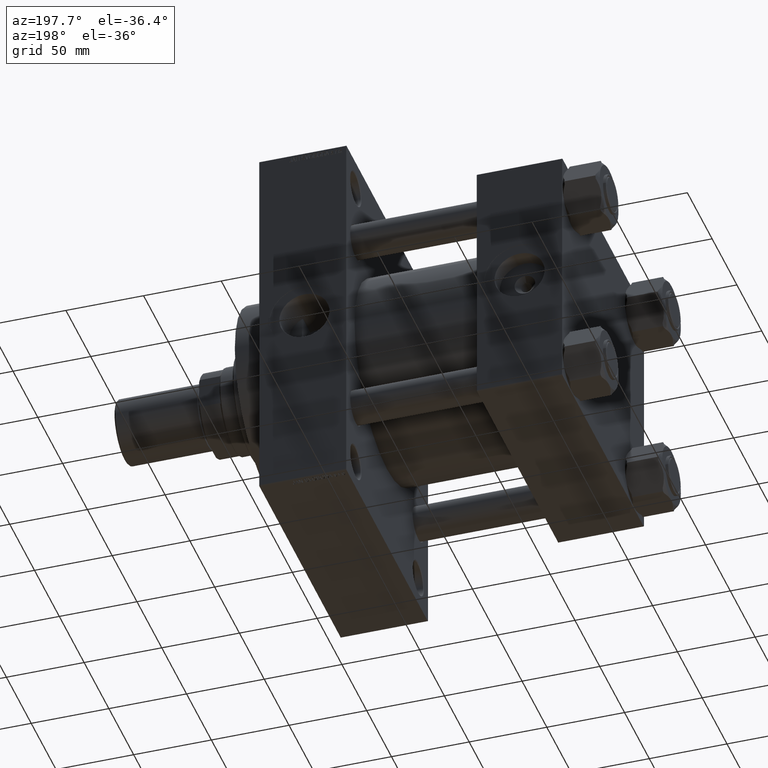
[diagram: clean part render]
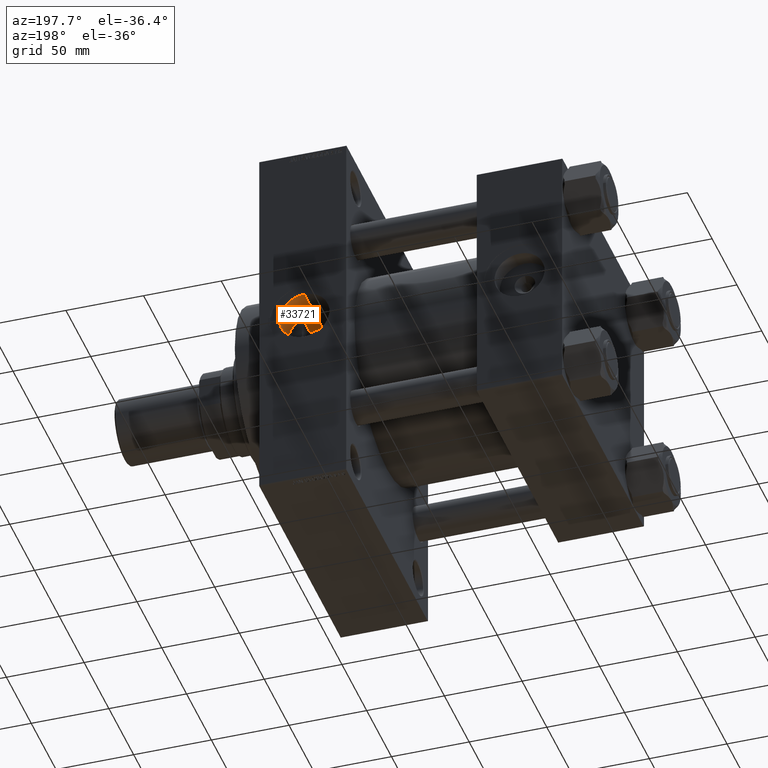
[diagram: same view with one face highlighted and labeled with its STEP entity id]
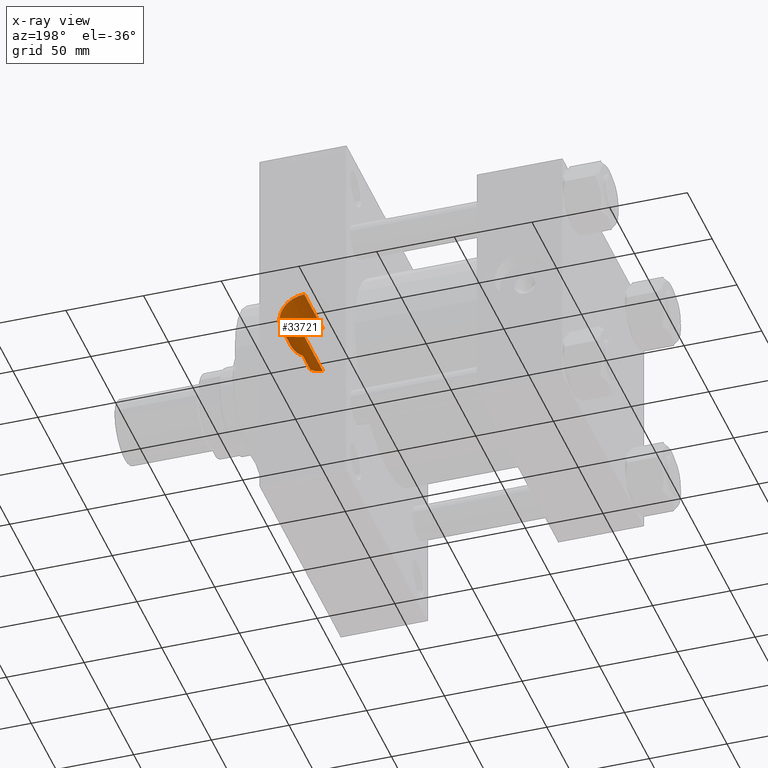
[diagram: x-ray of the same camera — body ghosted, the highlighted face saturated]
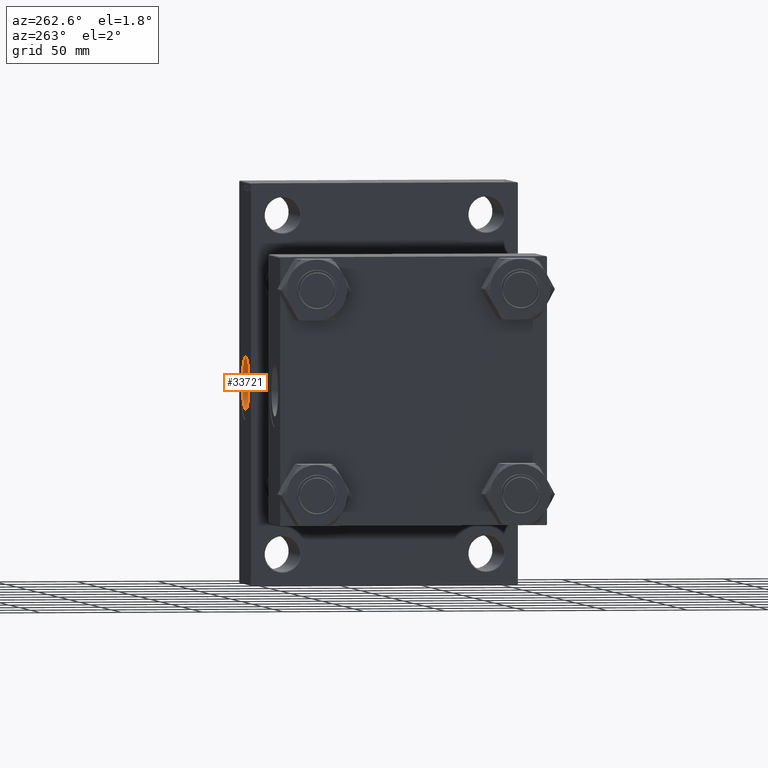
[diagram: same view with one face highlighted and labeled with its STEP entity id]
A machine part, auxiliary view. The second image highlights one B-rep face of the part: STEP entity #33721.
The next image is the same camera in x-ray: the body ghosted, the highlighted face saturated — about 0% of this face is hidden behind the body in this view.
A second angle (auxiliary view) of the same face is appended — the face is thin or edge-on in the first view.
In plain terms, the highlighted cylindrical surface (edge-blend (fillet) strip) has radius 16.12 mm, axis along (0, 1, 0).
Its self-contained STEP definition (entity closure, byte-faithful):
#37 = CARTESIAN_POINT ( 'NONE',  ( 173.1494744944648971, 45.77031564350476600, 14.46349258032446095 ) ) ;
#1028 = CARTESIAN_POINT ( 'NONE',  ( 173.7400000000000091, 45.86995966861102403, -14.14025459459621636 ) ) ;
#1095 = VERTEX_POINT ( 'NONE', #9516 ) ;
#1519 = CARTESIAN_POINT ( 'NONE',  ( 181.3378692003156232, 62.55353753374316739, 4.973331691625751283 ) ) ;
#2681 = B_SPLINE_CURVE_WITH_KNOTS ( 'NONE', 3,
 ( #19817, #15684, #38549, #8620, #12039, #20048, #31006, #46075, #30777, #34887, #45846, #1519, #27588, #19582, #16401, #12266, #31481, #12500, #12734, #27347, #42424, #26894, #9088, #38083, #41721, #8391, #5422, #23950, #20288, #38786, #35126, #16636, #46318, #12965 ),
 .UNSPECIFIED., .F., .F.,
 ( 4, 2, 2, 2, 2, 2, 2, 2, 2, 2, 2, 2, 2, 2, 2, 2, 4 ),
 ( 0.000000000000000000, 0.004310786156037396157, 0.006466179234056097271, 0.008621572312074797517, 0.01077696539009349863, 0.01185466192910285266, 0.01293235846811220495, 0.01508775154613088351, 0.01616544808514022713, 0.01724314462414957422, 0.02155393078018695563, 0.02370932385820564287, 0.02586471693622432663, 0.02802011001424301387, 0.03017550309226170457, 0.03233089617028038487, 0.03448628924829907211 ),
 .UNSPECIFIED. ) ;
#3685 = CARTESIAN_POINT ( 'NONE',  ( 171.2899849201476172, 45.51642107398105708, 15.24214357041101842 ) ) ;
#4374 = LINE ( 'NONE', #26556, #21952 ) ;
#4875 = ORIENTED_EDGE ( 'NONE', *, *, #31900, .T. ) ;
#5338 = CIRCLE ( 'NONE', #10821, 16.11999999999998678 ) ;
#5422 = CARTESIAN_POINT ( 'NONE',  ( 179.0878676966942464, 62.03878507609340431, -9.438007975454681286 ) ) ;
#6553 = VECTOR ( 'NONE', #47129, 1000.000000000000000 ) ;
#6772 = CARTESIAN_POINT ( 'NONE',  ( 168.6857543329126941, 45.28696950697766255, -15.90906751370484074 ) ) ;
#7503 = B_SPLINE_CURVE_WITH_KNOTS ( 'NONE', 3,
 ( #39017, #35358, #46554, #28546, #3685, #14416, #37, #29280 ),
 .UNSPECIFIED., .F., .F.,
 ( 4, 2, 2, 4 ),
 ( 0.05886594967679183166, 0.06289198165460405110, 0.06490499764351020939, 0.06691801363241635381 ),
 .UNSPECIFIED. ) ;
#8391 = CARTESIAN_POINT ( 'NONE',  ( 179.4999446742530154, 62.12752439615220368, -8.838607020167566830 ) ) ;
#8620 = CARTESIAN_POINT ( 'NONE',  ( 177.7040777867184147, 61.76112709188344496, 11.10770905158154065 ) ) ;
#9088 = CARTESIAN_POINT ( 'NONE',  ( 181.1156720542798837, 62.49893997579496130, -5.646621973076297429 ) ) ;
#9516 = CARTESIAN_POINT ( 'NONE',  ( 173.7400000000000091, 61.13604256083313260, 14.14025459459622525 ) ) ;
#9721 = DIRECTION ( 'NONE',  ( -0.000000000000000000, 1.000000000000000000, -0.000000000000000000 ) ) ;
#9816 = CARTESIAN_POINT ( 'NONE',  ( 166.0000000000000000, 82.29999999999998295, 16.11999999999998678 ) ) ;
#10207 = LINE ( 'NONE', #13849, #22874 ) ;
#10271 = DIRECTION ( 'NONE',  ( 0.000000000000000000, 0.000000000000000000, 1.000000000000000000 ) ) ;
#10704 = ORIENTED_EDGE ( 'NONE', *, *, #27239, .F. ) ;
#10821 = AXIS2_PLACEMENT_3D ( 'NONE', #43094, #24614, #12682 ) ;
#11164 = CARTESIAN_POINT ( 'NONE',  ( 167.3438729436467156, 45.22722990940117427, -16.07811279359962597 ) ) ;
#11576 = EDGE_CURVE ( 'NONE', #1095, #47817, #2681, .T. ) ;
#12039 = CARTESIAN_POINT ( 'NONE',  ( 178.1922647847151779, 61.85603912276899763, 10.56962814951440066 ) ) ;
#12151 = ORIENTED_EDGE ( 'NONE', *, *, #13703, .F. ) ;
#12266 = CARTESIAN_POINT ( 'NONE',  ( 182.0210206864248903, 62.72462827178716793, 1.819628234284409452 ) ) ;
#12311 = ORIENTED_EDGE ( 'NONE', *, *, #11576, .F. ) ;
#12326 = VERTEX_POINT ( 'NONE', #9816 ) ;
#12425 = VECTOR ( 'NONE', #33679, 1000.000000000000000 ) ;
#12500 = CARTESIAN_POINT ( 'NONE',  ( 182.1073514951995094, 62.74674732847982028, 0.7346649580493388454 ) ) ;
#12682 = DIRECTION ( 'NONE',  ( 0.000000000000000000, 0.000000000000000000, 1.000000000000000000 ) ) ;
#12734 = CARTESIAN_POINT ( 'NONE',  ( 182.1198132809739718, 62.74995203330141180, 0.3700207550707244608 ) ) ;
#12965 = CARTESIAN_POINT ( 'NONE',  ( 173.7400000000000091, 61.13604256083313970, -14.14025459459621636 ) ) ;
#13517 = EDGE_LOOP ( 'NONE', ( #12151, #40093, #31579, #12311, #23027, #10704, #4875, #39806 ) ) ;
#13703 = EDGE_CURVE ( 'NONE', #14110, #25321, #26386, .T. ) ;
#13849 = CARTESIAN_POINT ( 'NONE',  ( 173.7400000000000091, -45.59424525090854985, -14.14025459459621636 ) ) ;
#14021 = CARTESIAN_POINT ( 'NONE',  ( 173.7400000000000091, -45.59424525090854985, 14.14025459459622525 ) ) ;
#14091 = CARTESIAN_POINT ( 'NONE',  ( 172.5564695246980023, 45.67025323884699617, -14.78808775895372207 ) ) ;
#14110 = VERTEX_POINT ( 'NONE', #28222 ) ;
#14416 = CARTESIAN_POINT ( 'NONE',  ( 172.5414535946359536, 45.67878350021301515, 14.74843266064687874 ) ) ;
#14685 = CARTESIAN_POINT ( 'NONE',  ( 166.0000000000000000, -45.59424525090854985, -16.11999999999998323 ) ) ;
#14808 = CARTESIAN_POINT ( 'NONE',  ( 171.3134693119580447, 45.50485926341170284, -15.27851908447843776 ) ) ;
#15349 = DIRECTION ( 'NONE',  ( -0.000000000000000000, 1.000000000000000000, -0.000000000000000000 ) ) ;
#15684 = CARTESIAN_POINT ( 'NONE',  ( 175.0108882335912028, 61.29694069090442810, 13.44460411233723285 ) ) ;
#16401 = CARTESIAN_POINT ( 'NONE',  ( 181.8751131904984959, 62.68746661659928066, 2.890360560950549829 ) ) ;
#16636 = CARTESIAN_POINT ( 'NONE',  ( 174.9842866477863481, 61.30330481413456312, -13.40371477928928634 ) ) ;
#17504 = B_SPLINE_CURVE_WITH_KNOTS ( 'NONE', 3,
 ( #17762, #14091, #14808, #40141, #6772, #11164, #21647, #18002 ),
 .UNSPECIFIED., .F., .F.,
 ( 4, 2, 2, 4 ),
 ( 0.000000000000000000, 0.004036235975884295245, 0.006054353963826404270, 0.008072471951768512427 ),
 .UNSPECIFIED. ) ;
#17762 = CARTESIAN_POINT ( 'NONE',  ( 173.7400000000000091, 45.86995966861102403, -14.14025459459621636 ) ) ;
#18002 = CARTESIAN_POINT ( 'NONE',  ( 166.0000000000000000, 45.21222843435170802, -16.11999999999998323 ) ) ;
#19582 = CARTESIAN_POINT ( 'NONE',  ( 181.7308504339654007, 62.65088698864907002, 3.592960776317962956 ) ) ;
#19817 = CARTESIAN_POINT ( 'NONE',  ( 173.7400000000000091, 61.13604256083313260, 14.14025459459622525 ) ) ;
#20048 = CARTESIAN_POINT ( 'NONE',  ( 179.0824074963658461, 62.03763084836406705, 9.445579595696695918 ) ) ;
#20288 = CARTESIAN_POINT ( 'NONE',  ( 177.7196294468545261, 61.76409727335258282, -11.09113588884087598 ) ) ;
#20504 = FACE_OUTER_BOUND ( 'NONE', #13517, .T. ) ;
#21647 = CARTESIAN_POINT ( 'NONE',  ( 166.6722651381450362, 45.21222843435170802, -16.11999999999997613 ) ) ;
#21952 = VECTOR ( 'NONE', #15349, 1000.000000000000000 ) ;
#22554 = CARTESIAN_POINT ( 'NONE',  ( 166.0000000000000000, 82.29999999999998295, -16.11999999999998323 ) ) ;
#22874 = VECTOR ( 'NONE', #9721, 1000.000000000000000 ) ;
#23027 = ORIENTED_EDGE ( 'NONE', *, *, #41128, .T. ) ;
#23817 = EDGE_CURVE ( 'NONE', #12326, #25321, #5338, .T. ) ;
#23950 = CARTESIAN_POINT ( 'NONE',  ( 178.1984525682397020, 61.85726164268131555, -10.56248220501810309 ) ) ;
#24195 = VERTEX_POINT ( 'NONE', #30552 ) ;
#24614 = DIRECTION ( 'NONE',  ( 0.000000000000000000, 1.000000000000000000, 0.000000000000000000 ) ) ;
#25321 = VERTEX_POINT ( 'NONE', #22554 ) ;
#26386 = LINE ( 'NONE', #14685, #12425 ) ;
#26556 = CARTESIAN_POINT ( 'NONE',  ( 166.0000000000000000, -45.59424525090854985, 16.11999999999998678 ) ) ;
#26894 = CARTESIAN_POINT ( 'NONE',  ( 181.3539152370520071, 62.55730335018480304, -4.963766866520370691 ) ) ;
#27239 = EDGE_CURVE ( 'NONE', #40230, #24195, #7503, .T. ) ;
#27347 = CARTESIAN_POINT ( 'NONE',  ( 182.1207363821605156, 62.75018917097978033, -1.438953668206764069 ) ) ;
#27588 = CARTESIAN_POINT ( 'NONE',  ( 181.4448453445235145, 62.57989149070508716, 4.630314018804384091 ) ) ;
#28222 = CARTESIAN_POINT ( 'NONE',  ( 166.0000000000000000, 45.21222843435170802, -16.11999999999998323 ) ) ;
#28546 = CARTESIAN_POINT ( 'NONE',  ( 170.6430879966698626, 45.44537982001227050, 15.45148762276479992 ) ) ;
#29280 = CARTESIAN_POINT ( 'NONE',  ( 173.7400000000000091, 45.86995966861101692, 14.14025459459622525 ) ) ;
#30552 = CARTESIAN_POINT ( 'NONE',  ( 173.7400000000000091, 45.86995966861101692, 14.14025459459622525 ) ) ;
#30777 = CARTESIAN_POINT ( 'NONE',  ( 180.5429432851136369, 62.36288225190664036, 6.991551828479455111 ) ) ;
#31006 = CARTESIAN_POINT ( 'NONE',  ( 179.4871880878128252, 62.12475861185222925, 8.857757716719214969 ) ) ;
#31481 = CARTESIAN_POINT ( 'NONE',  ( 182.0578699388865687, 62.73406343517355310, 1.459903358546146279 ) ) ;
#31579 = ORIENTED_EDGE ( 'NONE', *, *, #35505, .T. ) ;
#31690 = CARTESIAN_POINT ( 'NONE',  ( 166.0000000000000000, -45.59424525090854985, 4.635293498561508778E-15 ) ) ;
#31900 = EDGE_CURVE ( 'NONE', #40230, #12326, #4374, .T. ) ;
#33679 = DIRECTION ( 'NONE',  ( -0.000000000000000000, 1.000000000000000000, -0.000000000000000000 ) ) ;
#33721 = ADVANCED_FACE ( 'NONE', ( #20504 ), #35343, .F. ) ;
#34438 = AXIS2_PLACEMENT_3D ( 'NONE', #31690, #46539, #10271 ) ;
#34887 = CARTESIAN_POINT ( 'NONE',  ( 180.9692512845932981, 62.46412994562627574, 5.992250417813703933 ) ) ;
#35126 = CARTESIAN_POINT ( 'NONE',  ( 176.1479786800501302, 61.48462609348658958, -12.54573653331594763 ) ) ;
#35343 = CYLINDRICAL_SURFACE ( 'NONE', #34438, 16.11999999999998678 ) ;
#35358 = CARTESIAN_POINT ( 'NONE',  ( 167.3581184065646426, 45.21222843435172223, 16.11999999999998678 ) ) ;
#35505 = EDGE_CURVE ( 'NONE', #42425, #47817, #10207, .T. ) ;
#36161 = CARTESIAN_POINT ( 'NONE',  ( 166.0000000000000000, 45.21222843435170802, 16.11999999999998678 ) ) ;
#38083 = CARTESIAN_POINT ( 'NONE',  ( 180.5550275037945767, 62.36571800341675242, -6.965562125424709095 ) ) ;
#38549 = CARTESIAN_POINT ( 'NONE',  ( 176.1584053545792301, 61.48068339435432250, 12.59802165026811949 ) ) ;
#38604 = CARTESIAN_POINT ( 'NONE',  ( 173.7400000000000091, 61.13604256083313970, -14.14025459459621636 ) ) ;
#38786 = CARTESIAN_POINT ( 'NONE',  ( 176.6943876133824460, 61.57778758648161244, -12.08275975309649475 ) ) ;
#39017 = CARTESIAN_POINT ( 'NONE',  ( 166.0000000000000000, 45.21222843435170802, 16.11999999999998678 ) ) ;
#39806 = ORIENTED_EDGE ( 'NONE', *, *, #23817, .T. ) ;
#40093 = ORIENTED_EDGE ( 'NONE', *, *, #41709, .F. ) ;
#40141 = CARTESIAN_POINT ( 'NONE',  ( 169.3579366539391913, 45.33210510979296259, -15.78073467282509235 ) ) ;
#40230 = VERTEX_POINT ( 'NONE', #36161 ) ;
#40557 = LINE ( 'NONE', #14021, #6553 ) ;
#41128 = EDGE_CURVE ( 'NONE', #1095, #24195, #40557, .T. ) ;
#41709 = EDGE_CURVE ( 'NONE', #42425, #14110, #17504, .T. ) ;
#41721 = CARTESIAN_POINT ( 'NONE',  ( 180.2319956063368522, 62.29069336847506833, -7.603931964849320657 ) ) ;
#42424 = CARTESIAN_POINT ( 'NONE',  ( 181.9300797995904304, 62.70037559523210291, -2.862889453970147269 ) ) ;
#42425 = VERTEX_POINT ( 'NONE', #1028 ) ;
#43094 = CARTESIAN_POINT ( 'NONE',  ( 166.0000000000000000, 82.29999999999998295, 4.635293498561508778E-15 ) ) ;
#45846 = CARTESIAN_POINT ( 'NONE',  ( 181.1003016284407465, 62.49571133805354606, 5.653773116338188132 ) ) ;
#46075 = CARTESIAN_POINT ( 'NONE',  ( 180.2174513462842924, 62.28737683390454549, 7.630739905158523406 ) ) ;
#46318 = CARTESIAN_POINT ( 'NONE',  ( 174.3754108764948683, 61.21648741755046785, -13.79244754832497222 ) ) ;
#46539 = DIRECTION ( 'NONE',  ( -0.000000000000000000, 1.000000000000000000, -0.000000000000000000 ) ) ;
#46554 = CARTESIAN_POINT ( 'NONE',  ( 168.6882412291107016, 45.27346865734190828, 15.95108468723057449 ) ) ;
#47129 = DIRECTION ( 'NONE',  ( 0.000000000000000000, -1.000000000000000000, 0.000000000000000000 ) ) ;
#47817 = VERTEX_POINT ( 'NONE', #38604 ) ;